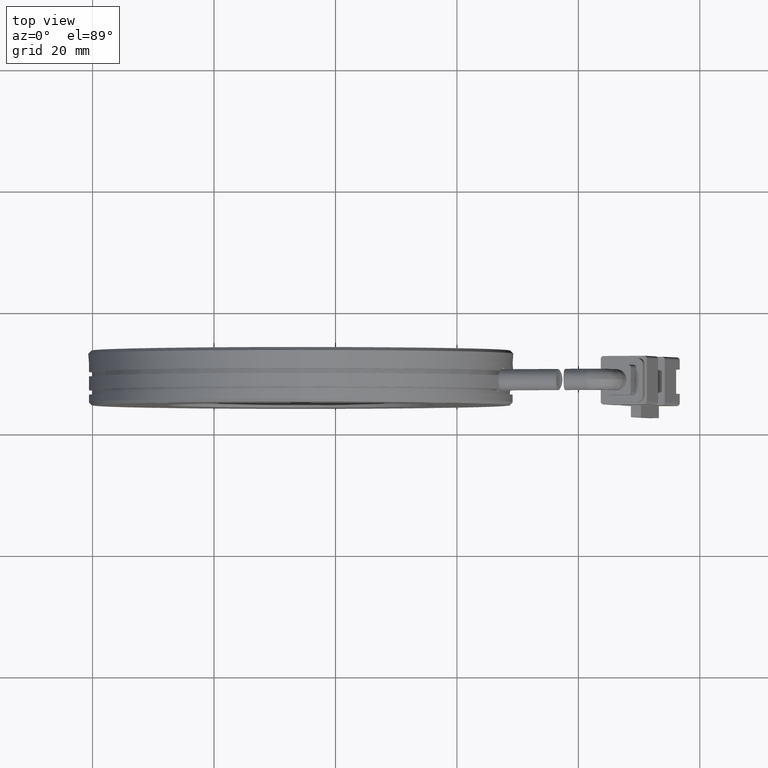
[diagram: clean part render]
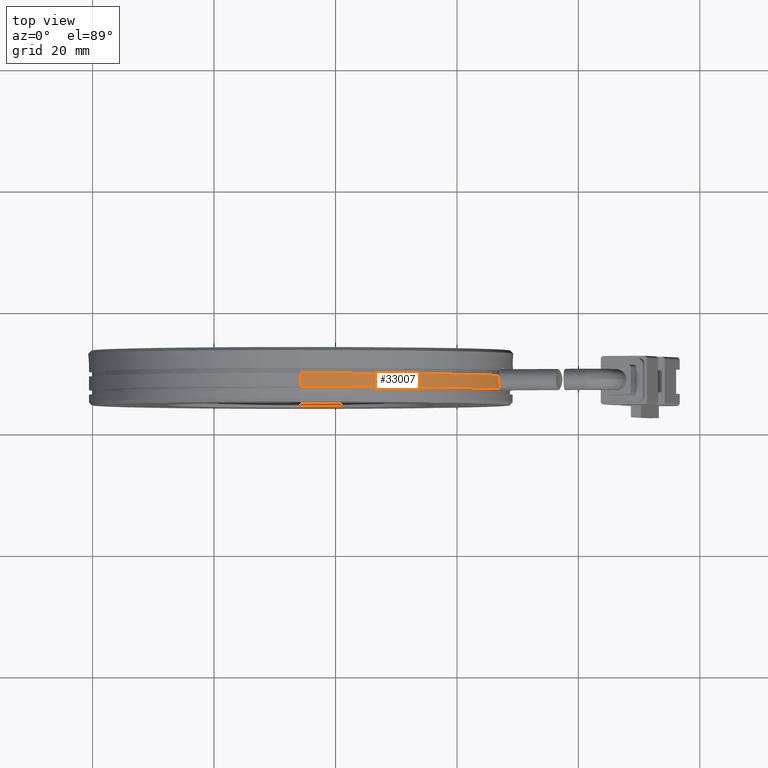
[diagram: same view with one face highlighted and labeled with its STEP entity id]
A machine part, top view. The second image highlights one B-rep face of the part: STEP entity #33007.
In plain terms, the highlighted cylindrical surface (partial cylindrical patch) has radius 35 mm, axis along (-0, -1, -0).
Its self-contained STEP definition (entity closure, byte-faithful):
#69 = CARTESIAN_POINT ( 'NONE',  ( 27.03845142799715600, 6.962707375693590000, 12.35280341975226100 ) ) ;
#1715 = DIRECTION ( 'NONE',  ( 0.0000000000000000000, 0.0000000000000000000, -1.000000000000000000 ) ) ;
#3190 = CARTESIAN_POINT ( 'NONE',  ( 26.95631757414318800, 7.314889336656670500, 12.56825597429866500 ) ) ;
#3860 = ORIENTED_EDGE ( 'NONE', *, *, #32368, .T. ) ;
#3882 = AXIS2_PLACEMENT_3D ( 'NONE', #36125, #17449, #39227 ) ;
#4295 = VERTEX_POINT ( 'NONE', #25161 ) ;
#5368 = VECTOR ( 'NONE', #7444, 1000.000000000000000 ) ;
#6277 = CARTESIAN_POINT ( 'NONE',  ( 26.90070538159776700, 7.704873837203913400, 12.71176149755637400 ) ) ;
#6974 = DIRECTION ( 'NONE',  ( -0.0000000000000000000, -1.000000000000000000, -0.0000000000000000000 ) ) ;
#7444 = DIRECTION ( 'NONE',  ( -0.0000000000000000000, -1.000000000000000000, -0.0000000000000000000 ) ) ;
#7456 = VERTEX_POINT ( 'NONE', #11100 ) ;
#8240 = ORIENTED_EDGE ( 'NONE', *, *, #34777, .T. ) ;
#9141 = CARTESIAN_POINT ( 'NONE',  ( 27.07069974216513600, 6.857086651324823200, 12.26714138136667000 ) ) ;
#9416 = CARTESIAN_POINT ( 'NONE',  ( 26.87450454725239300, 8.120933889454853700, 12.77873988887790800 ) ) ;
#11100 = CARTESIAN_POINT ( 'NONE',  ( 26.91938563951823900, 8.960202915484702000, 12.66370348832890800 ) ) ;
#11770 = CARTESIAN_POINT ( 'NONE',  ( -5.709292144904560800, 8.960202915404266800, 34.99999999999999300 ) ) ;
#11901 = EDGE_CURVE ( 'NONE', #7456, #34931, #39880, .T. ) ;
#12611 = ORIENTED_EDGE ( 'NONE', *, *, #35063, .T. ) ;
#13109 = FACE_OUTER_BOUND ( 'NONE', #32091, .T. ) ;
#13614 = LINE ( 'NONE', #22932, #5368 ) ;
#13857 = VERTEX_POINT ( 'NONE', #16458 ) ;
#13922 = DIRECTION ( 'NONE',  ( -0.0000000000000000000, -1.000000000000000000, -0.0000000000000000000 ) ) ;
#14224 = B_SPLINE_CURVE_WITH_KNOTS ( 'NONE', 3,
 ( #37297, #9141, #69, #21776, #3190, #24940, #6277, #28039, #9416, #31175 ),
 .UNSPECIFIED., .F., .F.,
 ( 4, 2, 2, 2, 4 ),
 ( 0.0000000000000000000, 0.0004183653248699448800, 0.0008367306497398897600, 0.001255095974609834600, 0.001673461299479779500 ),
 .UNSPECIFIED. ) ;
#15683 = CARTESIAN_POINT ( 'NONE',  ( 26.87465511872896000, 8.502234359627726300, 12.77835595012237100 ) ) ;
#16458 = CARTESIAN_POINT ( 'NONE',  ( 27.10654408716838000, 6.760202919316012200, 12.17049269297543500 ) ) ;
#17449 = DIRECTION ( 'NONE',  ( 0.0000000000000000000, 1.000000000000000000, 0.0000000000000000000 ) ) ;
#17482 = CYLINDRICAL_SURFACE ( 'NONE', #38742, 34.99999999999999300 ) ;
#18797 = CARTESIAN_POINT ( 'NONE',  ( 26.91938563951823900, 8.960202915484702000, 12.66370348832890800 ) ) ;
#21776 = CARTESIAN_POINT ( 'NONE',  ( 26.98136588094205400, 7.190816799137539100, 12.50309318851614800 ) ) ;
#21953 = ORIENTED_EDGE ( 'NONE', *, *, #23495, .T. ) ;
#22932 = CARTESIAN_POINT ( 'NONE',  ( -5.709292144904560800, -49.82318178258231000, 34.99999999999999300 ) ) ;
#23313 = CARTESIAN_POINT ( 'NONE',  ( -5.709292144904565300, -49.82318178258231000, 0.0000000000000000000 ) ) ;
#23495 = EDGE_CURVE ( 'NONE', #38342, #13857, #27721, .T. ) ;
#24045 = CARTESIAN_POINT ( 'NONE',  ( -5.709292144904560800, 6.760202915404272900, 34.99999999999999300 ) ) ;
#24940 = CARTESIAN_POINT ( 'NONE',  ( 26.91605794438170200, 7.571998370226174800, 12.67239709384731200 ) ) ;
#25161 = CARTESIAN_POINT ( 'NONE',  ( 26.87456041864329100, 8.262420099907672000, 12.77859742369934200 ) ) ;
#25634 = CARTESIAN_POINT ( 'NONE',  ( -5.709292144904565300, 8.960202915404266800, 0.0000000000000000000 ) ) ;
#27721 = CIRCLE ( 'NONE', #3882, 34.99999999999999300 ) ;
#28039 = CARTESIAN_POINT ( 'NONE',  ( 26.87987331067155200, 7.979304545166382200, 12.76507398953603800 ) ) ;
#28722 = DIRECTION ( 'NONE',  ( 0.0000000000000000000, 0.0000000000000000000, -1.000000000000000000 ) ) ;
#31175 = CARTESIAN_POINT ( 'NONE',  ( 26.87456041864329100, 8.262420099907672000, 12.77859742369934200 ) ) ;
#31217 = CARTESIAN_POINT ( 'NONE',  ( 26.87456041864329100, 8.262420099907672000, 12.77859742369934200 ) ) ;
#31943 = B_SPLINE_CURVE_WITH_KNOTS ( 'NONE', 3,
 ( #31217, #15683, #37479, #18797 ),
 .UNSPECIFIED., .F., .F.,
 ( 4, 4 ),
 ( 1.939479807224432100E-017, 0.0007085977522727759100 ),
 .UNSPECIFIED. ) ;
#32091 = EDGE_LOOP ( 'NONE', ( #39054, #3860, #21953, #8240, #12611 ) ) ;
#32368 = EDGE_CURVE ( 'NONE', #34931, #38342, #13614, .T. ) ;
#33007 = ADVANCED_FACE ( 'NONE', ( #13109 ), #17482, .T. ) ;
#33269 = AXIS2_PLACEMENT_3D ( 'NONE', #25634, #6974, #28722 ) ;
#34777 = EDGE_CURVE ( 'NONE', #13857, #4295, #14224, .T. ) ;
#34931 = VERTEX_POINT ( 'NONE', #11770 ) ;
#35063 = EDGE_CURVE ( 'NONE', #4295, #7456, #31943, .T. ) ;
#36125 = CARTESIAN_POINT ( 'NONE',  ( -5.709292144904565300, 6.760202915404272900, 0.0000000000000000000 ) ) ;
#37297 = CARTESIAN_POINT ( 'NONE',  ( 27.10654408716838000, 6.760202919316012200, 12.17049269297543500 ) ) ;
#37479 = CARTESIAN_POINT ( 'NONE',  ( 26.88975130470136000, 8.734818692133702100, 12.74005786309511700 ) ) ;
#38342 = VERTEX_POINT ( 'NONE', #24045 ) ;
#38742 = AXIS2_PLACEMENT_3D ( 'NONE', #23313, #13922, #1715 ) ;
#39054 = ORIENTED_EDGE ( 'NONE', *, *, #11901, .T. ) ;
#39227 = DIRECTION ( 'NONE',  ( 0.0000000000000000000, 0.0000000000000000000, -1.000000000000000000 ) ) ;
#39880 = CIRCLE ( 'NONE', #33269, 34.99999999999999300 ) ;